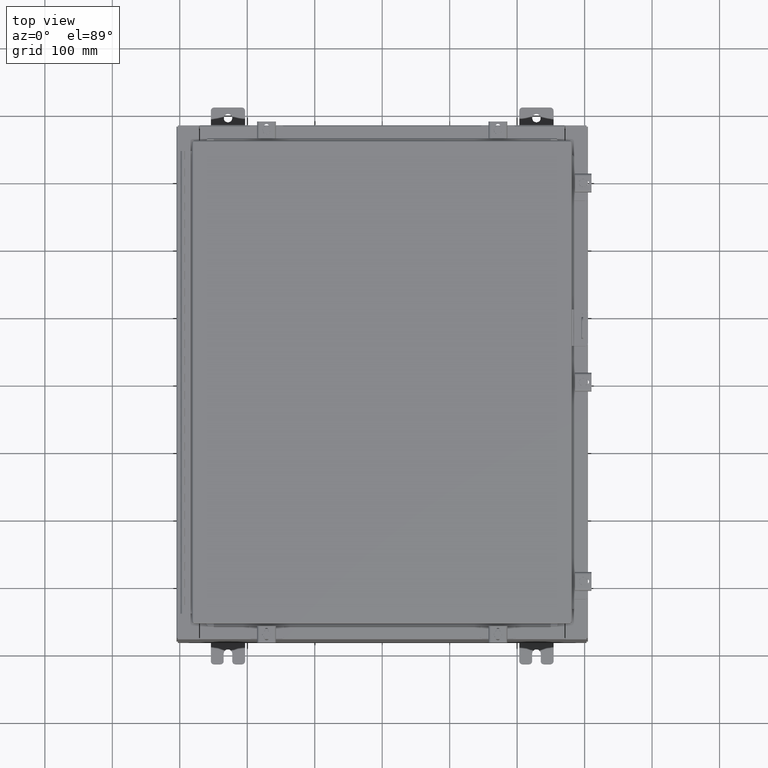
[diagram: clean part render]
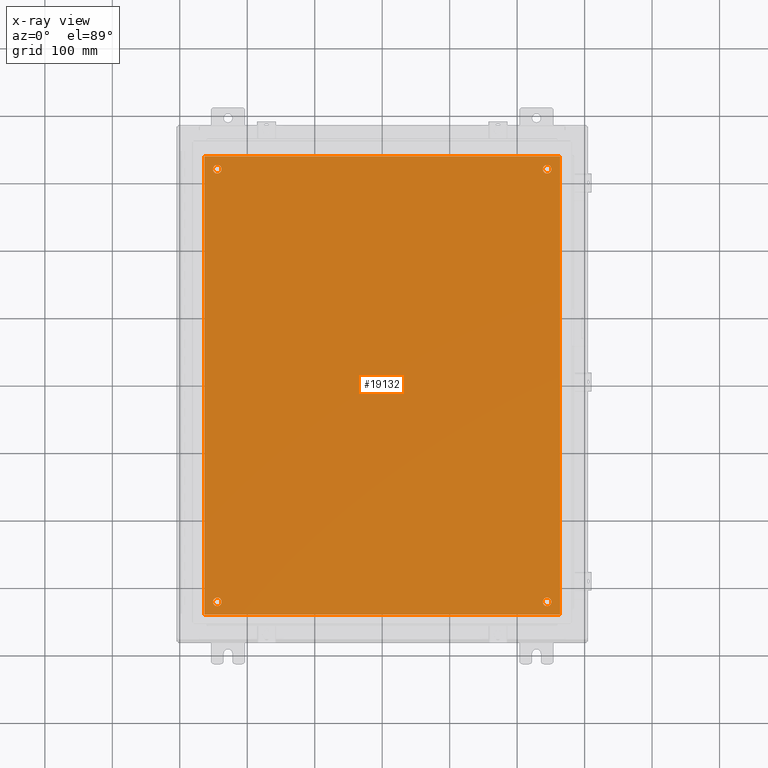
[diagram: x-ray — body ghosted, one internal face saturated and labeled with its STEP entity id]
A machine part, top view, then the same camera in x-ray: the body is ghosted and one INTERNAL B-rep face — a face not visible from any outside direction — is saturated and labeled: STEP entity #19132.
In plain terms, the highlighted planar face has unit normal (0, 0, -1).
Its self-contained STEP definition (entity closure, byte-faithful):
#769 = CARTESIAN_POINT ( 'NONE',  ( 9.625000000000007100, 12.62500000000000000, -0.1039999999999999800 ) ) ;
#1634 = DIRECTION ( 'NONE',  ( -0.0000000000000000000, -0.0000000000000000000, 1.000000000000000000 ) ) ;
#2136 = CARTESIAN_POINT ( 'NONE',  ( 9.875000000000007100, -12.62500000000000000, -0.1039999999999999800 ) ) ;
#2150 = ORIENTED_EDGE ( 'NONE', *, *, #32277, .T. ) ;
#2670 = EDGE_CURVE ( 'NONE', #28404, #6841, #21015, .T. ) ;
#2936 = AXIS2_PLACEMENT_3D ( 'NONE', #28701, #28069, #21821 ) ;
#3171 = ORIENTED_EDGE ( 'NONE', *, *, #19670, .T. ) ;
#3263 = DIRECTION ( 'NONE',  ( -1.000000000000000000, -0.0000000000000000000, -0.0000000000000000000 ) ) ;
#3522 = ORIENTED_EDGE ( 'NONE', *, *, #4239, .F. ) ;
#4030 = DIRECTION ( 'NONE',  ( 1.000000000000000000, -0.0000000000000000000, -0.0000000000000000000 ) ) ;
#4034 = LINE ( 'NONE', #4893, #8827 ) ;
#4239 = EDGE_CURVE ( 'NONE', #23732, #10437, #4034, .T. ) ;
#4510 = EDGE_CURVE ( 'NONE', #35540, #23732, #24264, .T. ) ;
#4565 = EDGE_CURVE ( 'NONE', #19915, #35540, #27166, .T. ) ;
#4893 = CARTESIAN_POINT ( 'NONE',  ( -10.38300000000000100, 13.38299999999999700, -0.1040000000000020100 ) ) ;
#4961 = VERTEX_POINT ( 'NONE', #28181 ) ;
#6150 = ORIENTED_EDGE ( 'NONE', *, *, #4565, .F. ) ;
#6841 = VERTEX_POINT ( 'NONE', #14180 ) ;
#6881 = ORIENTED_EDGE ( 'NONE', *, *, #37068, .T. ) ;
#7320 = AXIS2_PLACEMENT_3D ( 'NONE', #19424, #1634, #22382 ) ;
#7423 = LINE ( 'NONE', #19867, #16077 ) ;
#7565 = AXIS2_PLACEMENT_3D ( 'NONE', #22681, #22653, #22426 ) ;
#8039 = CARTESIAN_POINT ( 'NONE',  ( -10.38300000000000100, -13.38299999999999900, -0.1040000000000009100 ) ) ;
#8188 = VERTEX_POINT ( 'NONE', #18638 ) ;
#8727 = CARTESIAN_POINT ( 'NONE',  ( 10.38300000000000100, 13.38299999999999700, -0.1040000000000009100 ) ) ;
#8827 = VECTOR ( 'NONE', #20951, 39.37007874015748100 ) ;
#8941 = AXIS2_PLACEMENT_3D ( 'NONE', #769, #30168, #22078 ) ;
#9270 = VECTOR ( 'NONE', #3263, 39.37007874015748100 ) ;
#9564 = AXIS2_PLACEMENT_3D ( 'NONE', #29209, #11601, #32097 ) ;
#9964 = AXIS2_PLACEMENT_3D ( 'NONE', #31197, #22283, #35230 ) ;
#10437 = VERTEX_POINT ( 'NONE', #8039 ) ;
#10712 = CARTESIAN_POINT ( 'NONE',  ( -10.38300000000000100, 13.38299999999999700, -0.1040000000000020100 ) ) ;
#11318 = AXIS2_PLACEMENT_3D ( 'NONE', #32691, #15297, #35517 ) ;
#11601 = DIRECTION ( 'NONE',  ( -0.0000000000000000000, -0.0000000000000000000, 1.000000000000000000 ) ) ;
#11803 = EDGE_CURVE ( 'NONE', #10437, #19915, #7423, .T. ) ;
#12068 = PLANE ( 'NONE',  #9964 ) ;
#13909 = CIRCLE ( 'NONE', #9564, 0.2500000000000008900 ) ;
#14180 = CARTESIAN_POINT ( 'NONE',  ( 9.375000000000007100, -12.62500000000000000, -0.1039999999999999800 ) ) ;
#15297 = DIRECTION ( 'NONE',  ( -0.0000000000000000000, -0.0000000000000000000, 1.000000000000000000 ) ) ;
#15918 = VERTEX_POINT ( 'NONE', #26826 ) ;
#15933 = CARTESIAN_POINT ( 'NONE',  ( 10.38300000000000100, -13.38299999999999700, -0.1040000000000009100 ) ) ;
#16077 = VECTOR ( 'NONE', #4030, 39.37007874015748100 ) ;
#16178 = CARTESIAN_POINT ( 'NONE',  ( 9.375000000000007100, 12.62500000000000000, -0.1039999999999999800 ) ) ;
#16840 = AXIS2_PLACEMENT_3D ( 'NONE', #21357, #37114, #17290 ) ;
#17290 = DIRECTION ( 'NONE',  ( -1.000000000000000000, 0.0000000000000000000, 0.0000000000000000000 ) ) ;
#17583 = ORIENTED_EDGE ( 'NONE', *, *, #2670, .T. ) ;
#18638 = CARTESIAN_POINT ( 'NONE',  ( -9.875000000000007100, -12.62500000000000000, -0.1039999999999999800 ) ) ;
#19077 = VERTEX_POINT ( 'NONE', #36935 ) ;
#19132 = ADVANCED_FACE ( 'NONE', ( #25487, #25112, #25070, #25038, #25032 ), #12068, .T. ) ;
#19424 = CARTESIAN_POINT ( 'NONE',  ( 9.625000000000007100, 12.62500000000000000, -0.1039999999999999800 ) ) ;
#19467 = CIRCLE ( 'NONE', #8941, 0.2499999999999998100 ) ;
#19559 = CIRCLE ( 'NONE', #7320, 0.2499999999999998100 ) ;
#19645 = CIRCLE ( 'NONE', #16840, 0.2500000000000008900 ) ;
#19670 = EDGE_CURVE ( 'NONE', #19077, #25982, #19467, .T. ) ;
#19857 = CARTESIAN_POINT ( 'NONE',  ( 10.38300000000000100, -13.38299999999999700, -0.1040000000000009100 ) ) ;
#19867 = CARTESIAN_POINT ( 'NONE',  ( -10.50000000000000200, -13.38299999999999900, -0.1040000000000009100 ) ) ;
#19915 = VERTEX_POINT ( 'NONE', #15933 ) ;
#20868 = CIRCLE ( 'NONE', #7565, 0.2500000000000008900 ) ;
#20951 = DIRECTION ( 'NONE',  ( 0.0000000000000000000, -1.000000000000000000, 0.0000000000000000000 ) ) ;
#21015 = CIRCLE ( 'NONE', #21105, 0.2499999999999998100 ) ;
#21105 = AXIS2_PLACEMENT_3D ( 'NONE', #24311, #23257, #23630 ) ;
#21357 = CARTESIAN_POINT ( 'NONE',  ( -9.625000000000007100, 12.62500000000000000, -0.1039999999999999800 ) ) ;
#21418 = EDGE_CURVE ( 'NONE', #4961, #15918, #19645, .T. ) ;
#21458 = EDGE_LOOP ( 'NONE', ( #17583, #35734 ) ) ;
#21821 = DIRECTION ( 'NONE',  ( -1.000000000000000000, 0.0000000000000000000, 0.0000000000000000000 ) ) ;
#21839 = EDGE_LOOP ( 'NONE', ( #3171, #6881 ) ) ;
#22073 = ORIENTED_EDGE ( 'NONE', *, *, #21418, .T. ) ;
#22078 = DIRECTION ( 'NONE',  ( -1.000000000000000000, 0.0000000000000000000, 0.0000000000000000000 ) ) ;
#22283 = DIRECTION ( 'NONE',  ( 0.0000000000000000000, 0.0000000000000000000, -1.000000000000000000 ) ) ;
#22382 = DIRECTION ( 'NONE',  ( -1.000000000000000000, 0.0000000000000000000, 0.0000000000000000000 ) ) ;
#22426 = DIRECTION ( 'NONE',  ( -1.000000000000000000, 0.0000000000000000000, 0.0000000000000000000 ) ) ;
#22653 = DIRECTION ( 'NONE',  ( -0.0000000000000000000, -0.0000000000000000000, 1.000000000000000000 ) ) ;
#22681 = CARTESIAN_POINT ( 'NONE',  ( -9.625000000000007100, -12.62500000000000000, -0.1039999999999999800 ) ) ;
#23257 = DIRECTION ( 'NONE',  ( -0.0000000000000000000, -0.0000000000000000000, 1.000000000000000000 ) ) ;
#23630 = DIRECTION ( 'NONE',  ( -1.000000000000000000, 0.0000000000000000000, 0.0000000000000000000 ) ) ;
#23732 = VERTEX_POINT ( 'NONE', #10712 ) ;
#23766 = EDGE_LOOP ( 'NONE', ( #2150, #35107 ) ) ;
#24187 = CARTESIAN_POINT ( 'NONE',  ( 10.50000000000000400, 13.38299999999999900, -0.1040000000000009100 ) ) ;
#24264 = LINE ( 'NONE', #24187, #9270 ) ;
#24311 = CARTESIAN_POINT ( 'NONE',  ( 9.625000000000007100, -12.62500000000000000, -0.1039999999999999800 ) ) ;
#25026 = EDGE_CURVE ( 'NONE', #6841, #28404, #36103, .T. ) ;
#25032 = FACE_OUTER_BOUND ( 'NONE', #33642, .T. ) ;
#25038 = FACE_BOUND ( 'NONE', #30390, .T. ) ;
#25070 = FACE_BOUND ( 'NONE', #21839, .T. ) ;
#25112 = FACE_BOUND ( 'NONE', #21458, .T. ) ;
#25466 = CARTESIAN_POINT ( 'NONE',  ( -9.375000000000007100, -12.62500000000000000, -0.1039999999999999800 ) ) ;
#25487 = FACE_BOUND ( 'NONE', #23766, .T. ) ;
#25982 = VERTEX_POINT ( 'NONE', #16178 ) ;
#26826 = CARTESIAN_POINT ( 'NONE',  ( -9.875000000000007100, 12.62500000000000000, -0.1039999999999999800 ) ) ;
#27166 = LINE ( 'NONE', #19857, #28647 ) ;
#28069 = DIRECTION ( 'NONE',  ( -0.0000000000000000000, -0.0000000000000000000, 1.000000000000000000 ) ) ;
#28181 = CARTESIAN_POINT ( 'NONE',  ( -9.375000000000007100, 12.62500000000000000, -0.1039999999999999800 ) ) ;
#28317 = DIRECTION ( 'NONE',  ( 0.0000000000000000000, 1.000000000000000000, 0.0000000000000000000 ) ) ;
#28404 = VERTEX_POINT ( 'NONE', #2136 ) ;
#28647 = VECTOR ( 'NONE', #28317, 39.37007874015748100 ) ;
#28701 = CARTESIAN_POINT ( 'NONE',  ( 9.625000000000007100, -12.62500000000000000, -0.1039999999999999800 ) ) ;
#29209 = CARTESIAN_POINT ( 'NONE',  ( -9.625000000000007100, -12.62500000000000000, -0.1039999999999999800 ) ) ;
#30141 = VERTEX_POINT ( 'NONE', #25466 ) ;
#30168 = DIRECTION ( 'NONE',  ( -0.0000000000000000000, -0.0000000000000000000, 1.000000000000000000 ) ) ;
#30390 = EDGE_LOOP ( 'NONE', ( #22073, #32347 ) ) ;
#31197 = CARTESIAN_POINT ( 'NONE',  ( 0.0000000000000000000, 0.0000000000000000000, -0.1039999999999999800 ) ) ;
#32097 = DIRECTION ( 'NONE',  ( -1.000000000000000000, 0.0000000000000000000, 0.0000000000000000000 ) ) ;
#32277 = EDGE_CURVE ( 'NONE', #30141, #8188, #20868, .T. ) ;
#32347 = ORIENTED_EDGE ( 'NONE', *, *, #37532, .T. ) ;
#32691 = CARTESIAN_POINT ( 'NONE',  ( -9.625000000000007100, 12.62500000000000000, -0.1039999999999999800 ) ) ;
#33642 = EDGE_LOOP ( 'NONE', ( #34697, #3522, #35238, #6150 ) ) ;
#34697 = ORIENTED_EDGE ( 'NONE', *, *, #11803, .F. ) ;
#34718 = EDGE_CURVE ( 'NONE', #8188, #30141, #13909, .T. ) ;
#35107 = ORIENTED_EDGE ( 'NONE', *, *, #34718, .T. ) ;
#35230 = DIRECTION ( 'NONE',  ( -1.000000000000000000, 0.0000000000000000000, -0.0000000000000000000 ) ) ;
#35238 = ORIENTED_EDGE ( 'NONE', *, *, #4510, .F. ) ;
#35368 = CIRCLE ( 'NONE', #11318, 0.2500000000000008900 ) ;
#35517 = DIRECTION ( 'NONE',  ( -1.000000000000000000, 0.0000000000000000000, 0.0000000000000000000 ) ) ;
#35540 = VERTEX_POINT ( 'NONE', #8727 ) ;
#35734 = ORIENTED_EDGE ( 'NONE', *, *, #25026, .T. ) ;
#36103 = CIRCLE ( 'NONE', #2936, 0.2499999999999998100 ) ;
#36935 = CARTESIAN_POINT ( 'NONE',  ( 9.875000000000007100, 12.62500000000000000, -0.1039999999999999800 ) ) ;
#37068 = EDGE_CURVE ( 'NONE', #25982, #19077, #19559, .T. ) ;
#37114 = DIRECTION ( 'NONE',  ( -0.0000000000000000000, -0.0000000000000000000, 1.000000000000000000 ) ) ;
#37532 = EDGE_CURVE ( 'NONE', #15918, #4961, #35368, .T. ) ;